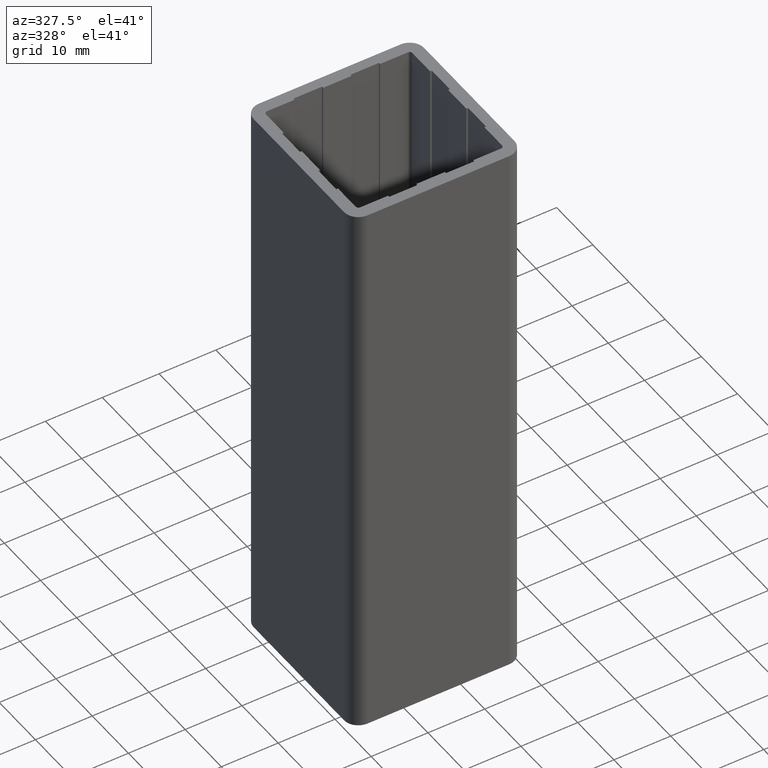
[diagram: clean part render]
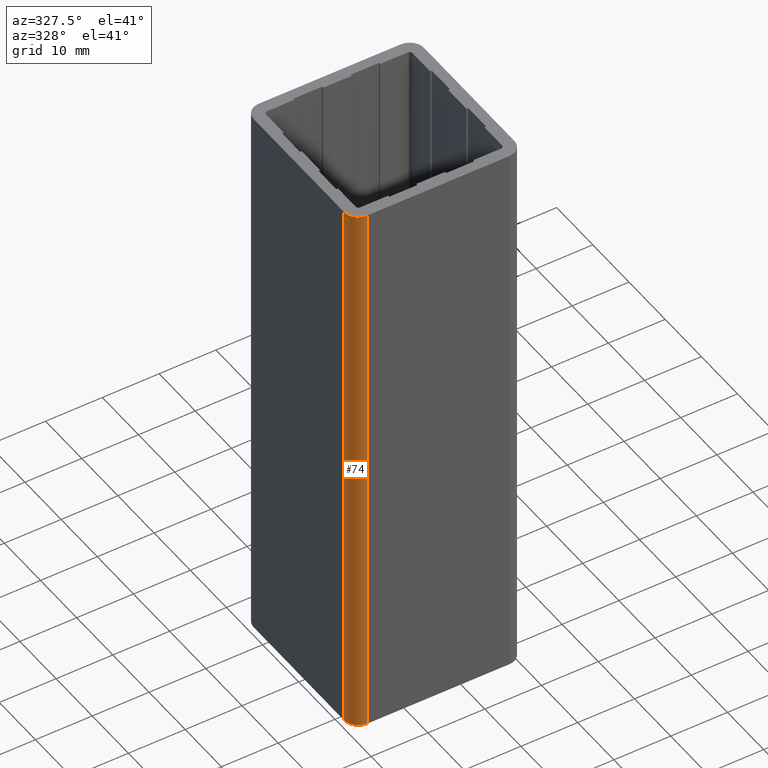
[diagram: same view with one face highlighted and labeled with its STEP entity id]
A machine part, auxiliary view. The second image highlights one B-rep face of the part: STEP entity #74.
In plain terms, the highlighted cylindrical surface (edge-blend (fillet) strip) has radius 2.5 mm, axis along (0, 0, 1).
Its self-contained STEP definition (entity closure, byte-faithful):
#9=CARTESIAN_POINT('',(-29.999999996970246,-12.499999998737621,0.0));
#10=VERTEX_POINT('',#9);
#17=CARTESIAN_POINT('',(-29.999999996970246,-12.499999998737621,100.0));
#18=VERTEX_POINT('',#17);
#19=CARTESIAN_POINT('',(-29.999999996970246,-12.499999998737621,0.0));
#20=DIRECTION('',(0.0,0.0,1.0));
#21=VECTOR('',#20,100.0);
#22=LINE('',#19,#21);
#23=EDGE_CURVE('',#10,#18,#22,.T.);
#42=CARTESIAN_POINT('',(-27.499999997222744,-12.499999998737621,0.0));
#43=DIRECTION('',(0.0,0.0,1.0));
#44=DIRECTION('',(1.0,0.0,0.0));
#45=AXIS2_PLACEMENT_3D('',#42,#43,#44);
#46=CYLINDRICAL_SURFACE('',#45,2.499999999747499);
#47=CARTESIAN_POINT('',(-27.499999997222744,-14.999999998485578,0.0));
#48=VERTEX_POINT('',#47);
#49=CARTESIAN_POINT('',(-27.499999997222744,-12.499999998737621,0.0));
#50=DIRECTION('',(0.0,0.0,1.0));
#51=DIRECTION('',(1.0,0.0,0.0));
#52=AXIS2_PLACEMENT_3D('',#49,#50,#51);
#53=CIRCLE('',#52,2.499999999747499);
#54=EDGE_CURVE('',#10,#48,#53,.T.);
#55=ORIENTED_EDGE('',*,*,#54,.T.);
#56=CARTESIAN_POINT('',(-27.499999997222744,-14.999999998485578,100.0));
#57=VERTEX_POINT('',#56);
#58=CARTESIAN_POINT('',(-27.499999997222744,-14.999999998485578,0.0));
#59=DIRECTION('',(0.0,0.0,1.0));
#60=VECTOR('',#59,100.0);
#61=LINE('',#58,#60);
#62=EDGE_CURVE('',#48,#57,#61,.T.);
#63=ORIENTED_EDGE('',*,*,#62,.T.);
#64=CARTESIAN_POINT('',(-27.499999997222744,-12.499999998737621,100.0));
#65=DIRECTION('',(0.0,0.0,1.0));
#66=DIRECTION('',(1.0,0.0,0.0));
#67=AXIS2_PLACEMENT_3D('',#64,#65,#66);
#68=CIRCLE('',#67,2.499999999747499);
#69=EDGE_CURVE('',#18,#57,#68,.T.);
#70=ORIENTED_EDGE('',*,*,#69,.F.);
#71=ORIENTED_EDGE('',*,*,#23,.F.);
#72=EDGE_LOOP('',(#55,#63,#70,#71));
#73=FACE_OUTER_BOUND('',#72,.T.);
#74=ADVANCED_FACE('',(#73),#46,.T.);